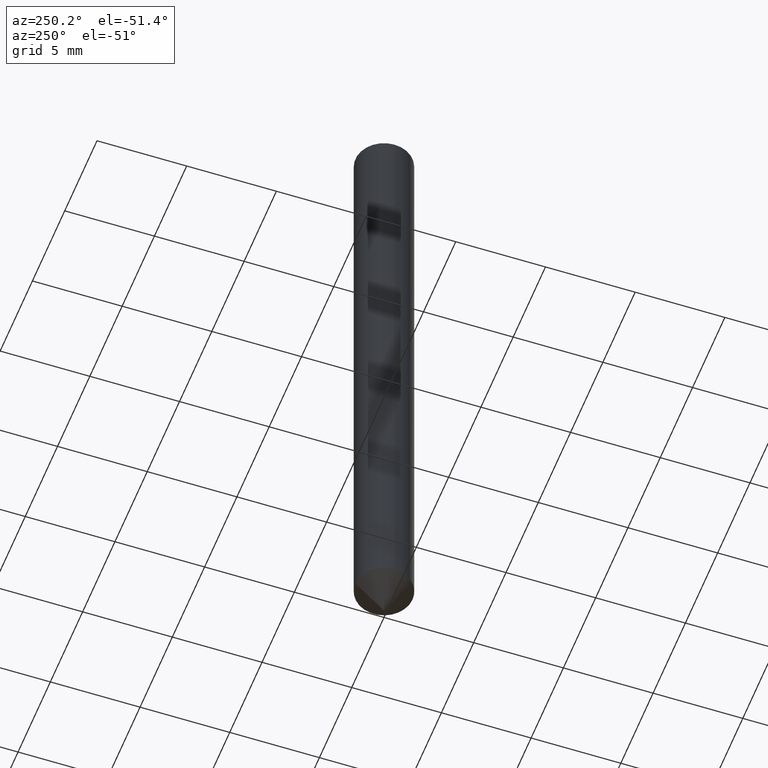
[diagram: clean part render]
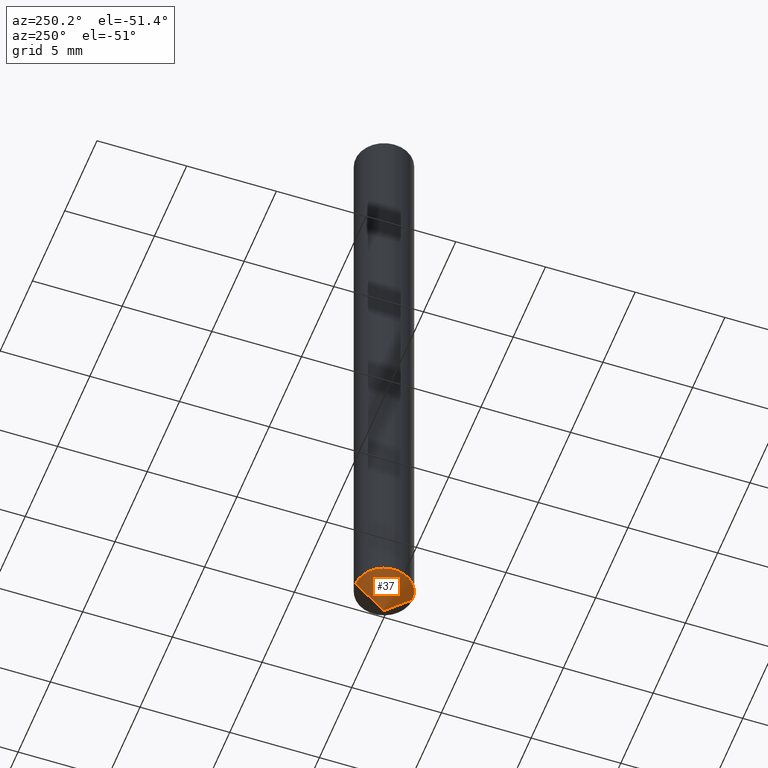
[diagram: same view with one face highlighted and labeled with its STEP entity id]
A machine part, auxiliary view. The second image highlights one B-rep face of the part: STEP entity #37.
In plain terms, the highlighted conical surface has half-angle 45 deg.
Its self-contained STEP definition (entity closure, byte-faithful):
#4 = DIRECTION ( 'NONE',  ( -6.982962677686266711E-15, -1.000000000000000000, 0.000000000000000000 ) ) ;
#17 = EDGE_CURVE ( 'NONE', #301, #253, #116, .T. ) ;
#37 = ADVANCED_FACE ( 'NONE', ( #202 ), #40, .T. ) ;
#38 = CARTESIAN_POINT ( 'NONE',  ( 4.440892098500995940E-16, 0.06249999999999523298, -1.437500000000000000 ) ) ;
#40 = CONICAL_SURFACE ( 'NONE', #178, 0.06250000000000022204, 0.7853981633974026488 ) ;
#47 = CARTESIAN_POINT ( 'NONE',  ( 3.516749098782405475E-29, -5.017017173680317883E-15, -1.437500000000000000 ) ) ;
#66 = EDGE_CURVE ( 'NONE', #231, #301, #161, .T. ) ;
#77 = DIRECTION ( 'NONE',  ( 6.982962677686266711E-15, 1.000000000000000000, 0.000000000000000000 ) ) ;
#79 = DIRECTION ( 'NONE',  ( 5.220848588728949475E-29, 4.830204745668128317E-16, -1.000000000000000000 ) ) ;
#88 = CARTESIAN_POINT ( 'NONE',  ( 4.440892098500992982E-16, 0.06249999999999519829, -1.437500000000000000 ) ) ;
#104 = DIRECTION ( 'NONE',  ( -5.220848588728949475E-29, -4.830204745668128317E-16, 1.000000000000000000 ) ) ;
#108 = ORIENTED_EDGE ( 'NONE', *, *, #325, .F. ) ;
#116 = CIRCLE ( 'NONE', #213, 0.06250000000000022204 ) ;
#137 = ORIENTED_EDGE ( 'NONE', *, *, #17, .T. ) ;
#147 = EDGE_LOOP ( 'NONE', ( #108, #386, #137 ) ) ;
#157 = VECTOR ( 'NONE', #167, 39.37007874015748143 ) ;
#161 = LINE ( 'NONE', #187, #157 ) ;
#167 = DIRECTION ( 'NONE',  ( -4.937700262164342149E-15, -0.7071067811865155983, 0.7071067811865795472 ) ) ;
#178 = AXIS2_PLACEMENT_3D ( 'NONE', #47, #104, #4 ) ;
#180 = DIRECTION ( 'NONE',  ( 5.024295867787813110E-15, 0.7071067811865149322, 0.7071067811865802133 ) ) ;
#187 = CARTESIAN_POINT ( 'NONE',  ( -4.364351673553579949E-16, -0.06250000000000524580, -1.437500000000000000 ) ) ;
#202 = FACE_OUTER_BOUND ( 'NONE', #147, .T. ) ;
#208 = LINE ( 'NONE', #88, #320 ) ;
#211 = CARTESIAN_POINT ( 'NONE',  ( -4.364351673553578470E-16, -0.06250000000000520417, -1.437500000000000000 ) ) ;
#213 = AXIS2_PLACEMENT_3D ( 'NONE', #345, #79, #77 ) ;
#231 = VERTEX_POINT ( 'NONE', #281 ) ;
#253 = VERTEX_POINT ( 'NONE', #38 ) ;
#281 = CARTESIAN_POINT ( 'NONE',  ( 7.831272883093423091E-29, 7.245307118502196420E-16, -1.500000000000000222 ) ) ;
#301 = VERTEX_POINT ( 'NONE', #211 ) ;
#320 = VECTOR ( 'NONE', #180, 39.37007874015748143 ) ;
#325 = EDGE_CURVE ( 'NONE', #231, #253, #208, .T. ) ;
#345 = CARTESIAN_POINT ( 'NONE',  ( 3.516749098782405475E-29, -5.017017173680317883E-15, -1.437500000000000000 ) ) ;
#386 = ORIENTED_EDGE ( 'NONE', *, *, #66, .T. ) ;